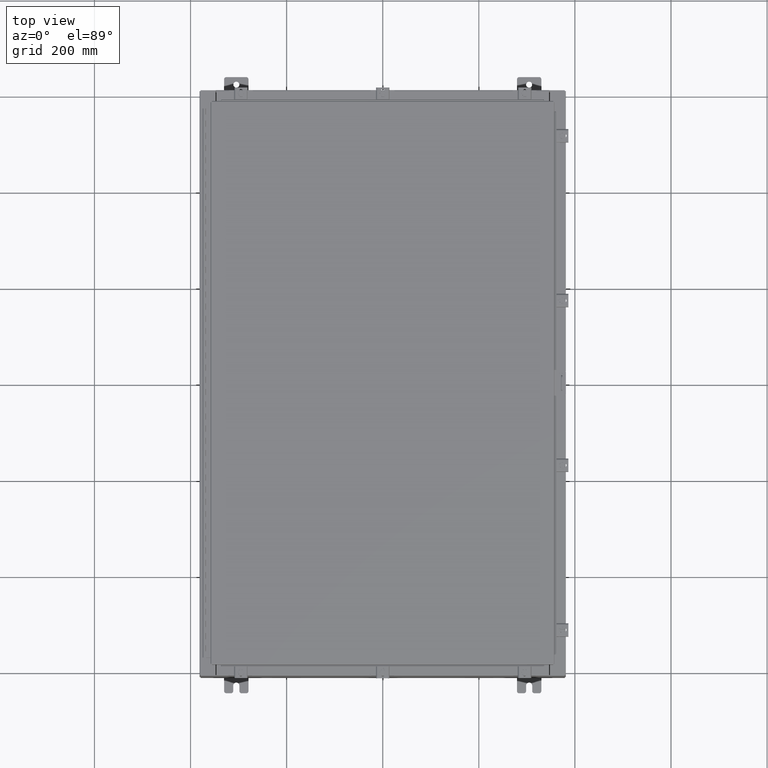
[diagram: clean part render]
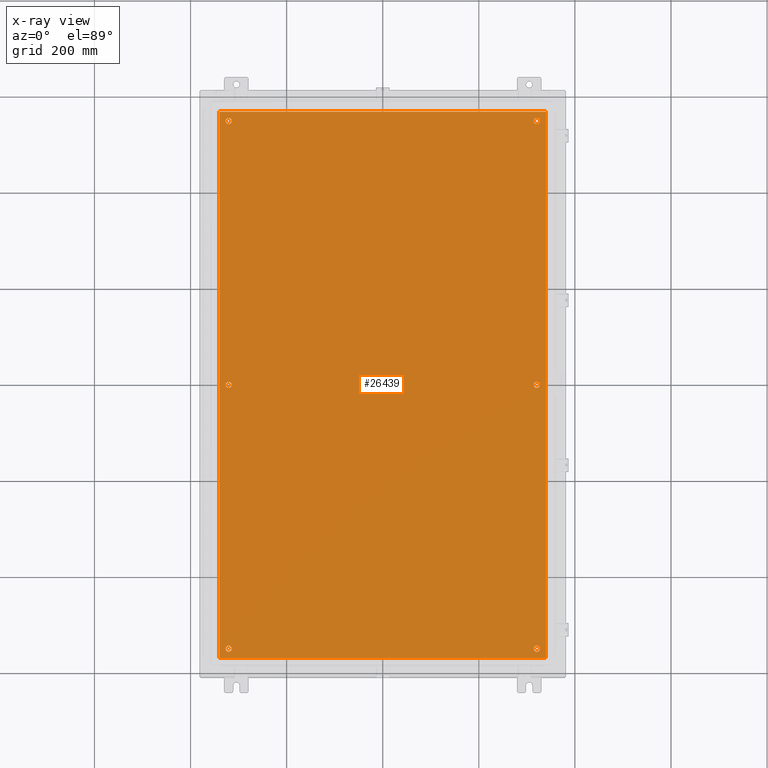
[diagram: x-ray — body ghosted, one internal face saturated and labeled with its STEP entity id]
A machine part, top view, then the same camera in x-ray: the body is ghosted and one INTERNAL B-rep face — a face not visible from any outside direction — is saturated and labeled: STEP entity #26439.
In plain terms, the highlighted planar face has unit normal (0, 0, -1).
Its self-contained STEP definition (entity closure, byte-faithful):
#87 = CARTESIAN_POINT ( 'NONE',  ( -12.37500000000000400, 21.62500000000000400, -0.1039999999999999800 ) ) ;
#137 = VERTEX_POINT ( 'NONE', #15143 ) ;
#528 = ORIENTED_EDGE ( 'NONE', *, *, #36025, .T. ) ;
#577 = AXIS2_PLACEMENT_3D ( 'NONE', #8017, #36178, #12087 ) ;
#583 = ORIENTED_EDGE ( 'NONE', *, *, #28558, .T. ) ;
#879 = CARTESIAN_POINT ( 'NONE',  ( 13.38300000000000300, 22.38300000000000300, -0.1040000000000009100 ) ) ;
#1854 = CIRCLE ( 'NONE', #13667, 0.2499999999999987000 ) ;
#2345 = VERTEX_POINT ( 'NONE', #25484 ) ;
#2367 = CARTESIAN_POINT ( 'NONE',  ( 13.38300000000000300, -22.38300000000000300, -0.1040000000000009100 ) ) ;
#2541 = VERTEX_POINT ( 'NONE', #43807 ) ;
#2562 = ORIENTED_EDGE ( 'NONE', *, *, #38238, .T. ) ;
#2617 = DIRECTION ( 'NONE',  ( -0.0000000000000000000, -0.0000000000000000000, 1.000000000000000000 ) ) ;
#2836 = CARTESIAN_POINT ( 'NONE',  ( 12.37500000000000400, 21.62500000000000400, -0.1039999999999999800 ) ) ;
#3016 = ORIENTED_EDGE ( 'NONE', *, *, #45758, .T. ) ;
#3372 = EDGE_LOOP ( 'NONE', ( #40344, #2562 ) ) ;
#3429 = CARTESIAN_POINT ( 'NONE',  ( 12.62500000000000000, 2.262348282635109100E-015, -0.1039999999999999800 ) ) ;
#3730 = LINE ( 'NONE', #10707, #33365 ) ;
#3999 = EDGE_LOOP ( 'NONE', ( #39160, #8997, #14042, #17241 ) ) ;
#4517 = CARTESIAN_POINT ( 'NONE',  ( -12.62500000000000200, -21.62500000000000400, -0.1039999999999999800 ) ) ;
#4704 = CARTESIAN_POINT ( 'NONE',  ( 13.38300000000000300, -22.38300000000000300, -0.1040000000000009100 ) ) ;
#4741 = CARTESIAN_POINT ( 'NONE',  ( -12.87500000000000000, -7.992687152332741600E-016, -0.1039999999999999800 ) ) ;
#4964 = FACE_BOUND ( 'NONE', #17929, .T. ) ;
#5053 = LINE ( 'NONE', #37817, #14524 ) ;
#5112 = CARTESIAN_POINT ( 'NONE',  ( -12.37499999999999800, -8.298848852119578500E-016, -0.1039999999999999800 ) ) ;
#5984 = CARTESIAN_POINT ( 'NONE',  ( -12.62500000000000000, -8.298848852119578500E-016, -0.1039999999999999800 ) ) ;
#6342 = ORIENTED_EDGE ( 'NONE', *, *, #40607, .T. ) ;
#6500 = DIRECTION ( 'NONE',  ( -1.000000000000000000, 0.0000000000000000000, 0.0000000000000000000 ) ) ;
#6539 = PLANE ( 'NONE',  #33568 ) ;
#6671 = DIRECTION ( 'NONE',  ( -0.0000000000000000000, -0.0000000000000000000, 1.000000000000000000 ) ) ;
#6791 = CARTESIAN_POINT ( 'NONE',  ( 12.62500000000000200, -21.62500000000000400, -0.1039999999999999800 ) ) ;
#7454 = AXIS2_PLACEMENT_3D ( 'NONE', #23816, #51918, #27847 ) ;
#7507 = DIRECTION ( 'NONE',  ( -1.000000000000000000, 0.0000000000000000000, 0.0000000000000000000 ) ) ;
#7622 = CARTESIAN_POINT ( 'NONE',  ( -13.38299999999999900, -22.38300000000000600, -0.1040000000000009400 ) ) ;
#8017 = CARTESIAN_POINT ( 'NONE',  ( -12.62500000000000200, -21.62500000000000400, -0.1039999999999999800 ) ) ;
#8069 = ORIENTED_EDGE ( 'NONE', *, *, #18540, .T. ) ;
#8611 = DIRECTION ( 'NONE',  ( -1.000000000000000000, 0.0000000000000000000, 0.0000000000000000000 ) ) ;
#8997 = ORIENTED_EDGE ( 'NONE', *, *, #13043, .F. ) ;
#9728 = AXIS2_PLACEMENT_3D ( 'NONE', #10237, #38349, #14279 ) ;
#10052 = DIRECTION ( 'NONE',  ( -1.000000000000000000, 0.0000000000000000000, 0.0000000000000000000 ) ) ;
#10088 = VERTEX_POINT ( 'NONE', #879 ) ;
#10237 = CARTESIAN_POINT ( 'NONE',  ( -12.62500000000000000, -8.298848852119578500E-016, -0.1039999999999999800 ) ) ;
#10611 = DIRECTION ( 'NONE',  ( -1.000000000000000000, 0.0000000000000000000, -0.0000000000000000000 ) ) ;
#10707 = CARTESIAN_POINT ( 'NONE',  ( -13.38299999999999900, 22.38300000000000300, -0.1040000000000030900 ) ) ;
#11000 = DIRECTION ( 'NONE',  ( 0.0000000000000000000, -1.000000000000000000, 0.0000000000000000000 ) ) ;
#11089 = VERTEX_POINT ( 'NONE', #87 ) ;
#12087 = DIRECTION ( 'NONE',  ( -1.000000000000000000, 0.0000000000000000000, 0.0000000000000000000 ) ) ;
#12310 = DIRECTION ( 'NONE',  ( -0.0000000000000000000, -0.0000000000000000000, 1.000000000000000000 ) ) ;
#12874 = AXIS2_PLACEMENT_3D ( 'NONE', #40110, #16077, #44171 ) ;
#13043 = EDGE_CURVE ( 'NONE', #30437, #32237, #3730, .T. ) ;
#13667 = AXIS2_PLACEMENT_3D ( 'NONE', #4517, #32700, #8611 ) ;
#13704 = CIRCLE ( 'NONE', #43917, 0.2500000000000008900 ) ;
#14042 = ORIENTED_EDGE ( 'NONE', *, *, #51787, .F. ) ;
#14279 = DIRECTION ( 'NONE',  ( -1.000000000000000000, 0.0000000000000000000, 0.0000000000000000000 ) ) ;
#14524 = VECTOR ( 'NONE', #25521, 39.37007874015748100 ) ;
#14639 = CIRCLE ( 'NONE', #577, 0.2499999999999987000 ) ;
#14848 = CIRCLE ( 'NONE', #17475, 0.2499999999999987000 ) ;
#14985 = CARTESIAN_POINT ( 'NONE',  ( -12.62500000000000200, 21.62500000000000400, -0.1039999999999999800 ) ) ;
#15143 = CARTESIAN_POINT ( 'NONE',  ( 12.37500000000000400, -21.62500000000000400, -0.1039999999999999800 ) ) ;
#15537 = AXIS2_PLACEMENT_3D ( 'NONE', #14985, #43077, #19069 ) ;
#15718 = FACE_BOUND ( 'NONE', #34850, .T. ) ;
#15902 = CARTESIAN_POINT ( 'NONE',  ( -13.38299999999999900, 22.38300000000000300, -0.1040000000000030900 ) ) ;
#16077 = DIRECTION ( 'NONE',  ( -0.0000000000000000000, -0.0000000000000000000, 1.000000000000000000 ) ) ;
#16337 = CIRCLE ( 'NONE', #31795, 0.2500000000000008900 ) ;
#16459 = DIRECTION ( 'NONE',  ( 1.000000000000000000, -0.0000000000000000000, -0.0000000000000000000 ) ) ;
#17160 = EDGE_CURVE ( 'NONE', #28034, #137, #36628, .T. ) ;
#17230 = VERTEX_POINT ( 'NONE', #4741 ) ;
#17241 = ORIENTED_EDGE ( 'NONE', *, *, #31239, .F. ) ;
#17462 = EDGE_CURVE ( 'NONE', #32237, #51890, #42811, .T. ) ;
#17475 = AXIS2_PLACEMENT_3D ( 'NONE', #19113, #47198, #23129 ) ;
#17792 = VERTEX_POINT ( 'NONE', #22741 ) ;
#17927 = CIRCLE ( 'NONE', #7454, 0.2499999999999987000 ) ;
#17929 = EDGE_LOOP ( 'NONE', ( #39488, #8069 ) ) ;
#18244 = VERTEX_POINT ( 'NONE', #25687 ) ;
#18540 = EDGE_CURVE ( 'NONE', #18244, #19050, #16337, .T. ) ;
#19050 = VERTEX_POINT ( 'NONE', #31244 ) ;
#19069 = DIRECTION ( 'NONE',  ( -1.000000000000000000, 0.0000000000000000000, 0.0000000000000000000 ) ) ;
#19113 = CARTESIAN_POINT ( 'NONE',  ( 12.62500000000000200, -21.62500000000000400, -0.1039999999999999800 ) ) ;
#19559 = EDGE_CURVE ( 'NONE', #19050, #18244, #13704, .T. ) ;
#20243 = VECTOR ( 'NONE', #16459, 39.37007874015748100 ) ;
#22741 = CARTESIAN_POINT ( 'NONE',  ( 12.87500000000000000, 21.62500000000000400, -0.1039999999999999800 ) ) ;
#23129 = DIRECTION ( 'NONE',  ( -1.000000000000000000, 0.0000000000000000000, 0.0000000000000000000 ) ) ;
#23816 = CARTESIAN_POINT ( 'NONE',  ( 12.62500000000000200, 21.62500000000000400, -0.1039999999999999800 ) ) ;
#24376 = CARTESIAN_POINT ( 'NONE',  ( -13.49999999999999500, -22.38300000000000600, -0.1040000000000009400 ) ) ;
#25171 = FACE_OUTER_BOUND ( 'NONE', #3999, .T. ) ;
#25484 = CARTESIAN_POINT ( 'NONE',  ( -12.87500000000000000, -21.62500000000000400, -0.1039999999999999800 ) ) ;
#25521 = DIRECTION ( 'NONE',  ( -1.000000000000000000, -0.0000000000000000000, -0.0000000000000000000 ) ) ;
#25687 = CARTESIAN_POINT ( 'NONE',  ( 12.37499999999999800, 2.292964452613792900E-015, -0.1039999999999999800 ) ) ;
#25807 = ORIENTED_EDGE ( 'NONE', *, *, #29941, .T. ) ;
#26405 = FACE_BOUND ( 'NONE', #3372, .T. ) ;
#26439 = ADVANCED_FACE ( 'NONE', ( #4964, #37111, #15718, #46484, #35844, #26405, #25171 ), #6539, .T. ) ;
#26793 = CARTESIAN_POINT ( 'NONE',  ( 12.62500000000000000, 2.262348282635109100E-015, -0.1039999999999999800 ) ) ;
#27276 = EDGE_LOOP ( 'NONE', ( #27716, #583 ) ) ;
#27584 = CIRCLE ( 'NONE', #41719, 0.2499999999999987000 ) ;
#27716 = ORIENTED_EDGE ( 'NONE', *, *, #17160, .T. ) ;
#27847 = DIRECTION ( 'NONE',  ( -1.000000000000000000, 0.0000000000000000000, 0.0000000000000000000 ) ) ;
#28034 = VERTEX_POINT ( 'NONE', #42237 ) ;
#28558 = EDGE_CURVE ( 'NONE', #137, #28034, #14848, .T. ) ;
#29681 = VERTEX_POINT ( 'NONE', #46182 ) ;
#29740 = AXIS2_PLACEMENT_3D ( 'NONE', #6791, #6671, #6500 ) ;
#29941 = EDGE_CURVE ( 'NONE', #2345, #2541, #14639, .T. ) ;
#30243 = VECTOR ( 'NONE', #40942, 39.37007874015748100 ) ;
#30437 = VERTEX_POINT ( 'NONE', #15902 ) ;
#30841 = DIRECTION ( 'NONE',  ( -1.000000000000000000, 0.0000000000000000000, 0.0000000000000000000 ) ) ;
#30948 = EDGE_CURVE ( 'NONE', #11089, #29681, #45339, .T. ) ;
#31239 = EDGE_CURVE ( 'NONE', #51890, #10088, #40888, .T. ) ;
#31244 = CARTESIAN_POINT ( 'NONE',  ( 12.87500000000000000, 2.262348282635109100E-015, -0.1039999999999999800 ) ) ;
#31627 = DIRECTION ( 'NONE',  ( -0.0000000000000000000, -0.0000000000000000000, 1.000000000000000000 ) ) ;
#31795 = AXIS2_PLACEMENT_3D ( 'NONE', #3429, #31627, #7507 ) ;
#32237 = VERTEX_POINT ( 'NONE', #7622 ) ;
#32700 = DIRECTION ( 'NONE',  ( -0.0000000000000000000, -0.0000000000000000000, 1.000000000000000000 ) ) ;
#33365 = VECTOR ( 'NONE', #11000, 39.37007874015748100 ) ;
#33568 = AXIS2_PLACEMENT_3D ( 'NONE', #34529, #34715, #10611 ) ;
#33727 = VERTEX_POINT ( 'NONE', #5112 ) ;
#34163 = DIRECTION ( 'NONE',  ( -0.0000000000000000000, -0.0000000000000000000, 1.000000000000000000 ) ) ;
#34529 = CARTESIAN_POINT ( 'NONE',  ( 0.0000000000000000000, 0.0000000000000000000, -0.1039999999999999800 ) ) ;
#34715 = DIRECTION ( 'NONE',  ( 0.0000000000000000000, 0.0000000000000000000, -1.000000000000000000 ) ) ;
#34850 = EDGE_LOOP ( 'NONE', ( #528, #25807 ) ) ;
#35844 = FACE_BOUND ( 'NONE', #36750, .T. ) ;
#36025 = EDGE_CURVE ( 'NONE', #2541, #2345, #1854, .T. ) ;
#36178 = DIRECTION ( 'NONE',  ( -0.0000000000000000000, -0.0000000000000000000, 1.000000000000000000 ) ) ;
#36413 = CARTESIAN_POINT ( 'NONE',  ( -12.62500000000000200, 21.62500000000000400, -0.1039999999999999800 ) ) ;
#36628 = CIRCLE ( 'NONE', #29740, 0.2499999999999987000 ) ;
#36750 = EDGE_LOOP ( 'NONE', ( #44086, #6342 ) ) ;
#36799 = EDGE_LOOP ( 'NONE', ( #3016, #48399 ) ) ;
#37111 = FACE_BOUND ( 'NONE', #36799, .T. ) ;
#37817 = CARTESIAN_POINT ( 'NONE',  ( 13.50000000000000400, 22.38299999999999900, -0.1040000000000009400 ) ) ;
#38238 = EDGE_CURVE ( 'NONE', #29681, #11089, #27584, .T. ) ;
#38349 = DIRECTION ( 'NONE',  ( -0.0000000000000000000, -0.0000000000000000000, 1.000000000000000000 ) ) ;
#39160 = ORIENTED_EDGE ( 'NONE', *, *, #17462, .F. ) ;
#39488 = ORIENTED_EDGE ( 'NONE', *, *, #19559, .T. ) ;
#40110 = CARTESIAN_POINT ( 'NONE',  ( 12.62500000000000200, 21.62500000000000400, -0.1039999999999999800 ) ) ;
#40344 = ORIENTED_EDGE ( 'NONE', *, *, #30948, .T. ) ;
#40412 = DIRECTION ( 'NONE',  ( -1.000000000000000000, 0.0000000000000000000, 0.0000000000000000000 ) ) ;
#40607 = EDGE_CURVE ( 'NONE', #50136, #17792, #17927, .T. ) ;
#40658 = EDGE_CURVE ( 'NONE', #17792, #50136, #47468, .T. ) ;
#40888 = LINE ( 'NONE', #4704, #30243 ) ;
#40942 = DIRECTION ( 'NONE',  ( 0.0000000000000000000, 1.000000000000000000, 0.0000000000000000000 ) ) ;
#41719 = AXIS2_PLACEMENT_3D ( 'NONE', #36413, #12310, #40412 ) ;
#42237 = CARTESIAN_POINT ( 'NONE',  ( 12.87500000000000000, -21.62500000000000400, -0.1039999999999999800 ) ) ;
#42811 = LINE ( 'NONE', #24376, #20243 ) ;
#43077 = DIRECTION ( 'NONE',  ( -0.0000000000000000000, -0.0000000000000000000, 1.000000000000000000 ) ) ;
#43807 = CARTESIAN_POINT ( 'NONE',  ( -12.37500000000000400, -21.62500000000000400, -0.1039999999999999800 ) ) ;
#43917 = AXIS2_PLACEMENT_3D ( 'NONE', #26793, #2617, #30841 ) ;
#44086 = ORIENTED_EDGE ( 'NONE', *, *, #40658, .T. ) ;
#44171 = DIRECTION ( 'NONE',  ( -1.000000000000000000, 0.0000000000000000000, 0.0000000000000000000 ) ) ;
#44554 = CIRCLE ( 'NONE', #9728, 0.2500000000000008900 ) ;
#45339 = CIRCLE ( 'NONE', #15537, 0.2499999999999987000 ) ;
#45758 = EDGE_CURVE ( 'NONE', #33727, #17230, #45824, .T. ) ;
#45776 = EDGE_CURVE ( 'NONE', #17230, #33727, #44554, .T. ) ;
#45824 = CIRCLE ( 'NONE', #51173, 0.2500000000000008900 ) ;
#46182 = CARTESIAN_POINT ( 'NONE',  ( -12.87500000000000000, 21.62500000000000400, -0.1039999999999999800 ) ) ;
#46484 = FACE_BOUND ( 'NONE', #27276, .T. ) ;
#47198 = DIRECTION ( 'NONE',  ( -0.0000000000000000000, -0.0000000000000000000, 1.000000000000000000 ) ) ;
#47468 = CIRCLE ( 'NONE', #12874, 0.2499999999999987000 ) ;
#48399 = ORIENTED_EDGE ( 'NONE', *, *, #45776, .T. ) ;
#50136 = VERTEX_POINT ( 'NONE', #2836 ) ;
#51173 = AXIS2_PLACEMENT_3D ( 'NONE', #5984, #34163, #10052 ) ;
#51787 = EDGE_CURVE ( 'NONE', #10088, #30437, #5053, .T. ) ;
#51890 = VERTEX_POINT ( 'NONE', #2367 ) ;
#51918 = DIRECTION ( 'NONE',  ( -0.0000000000000000000, -0.0000000000000000000, 1.000000000000000000 ) ) ;